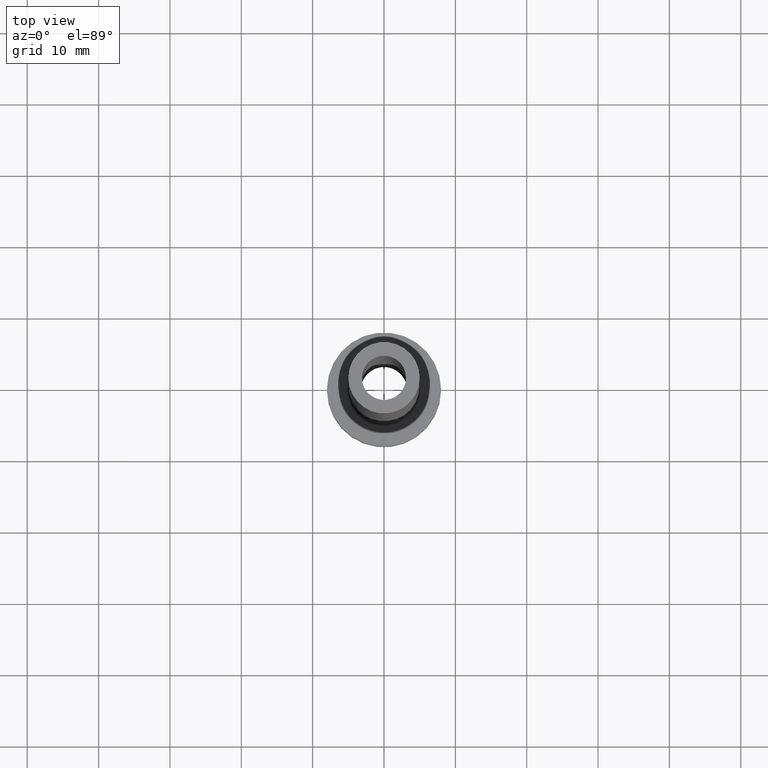
[diagram: clean part render]
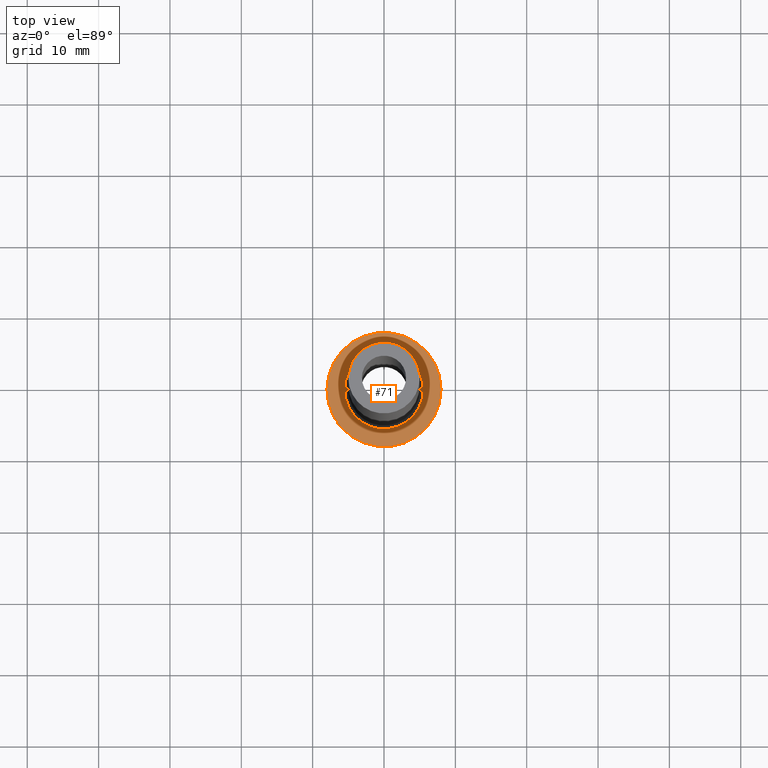
[diagram: same view with one face highlighted and labeled with its STEP entity id]
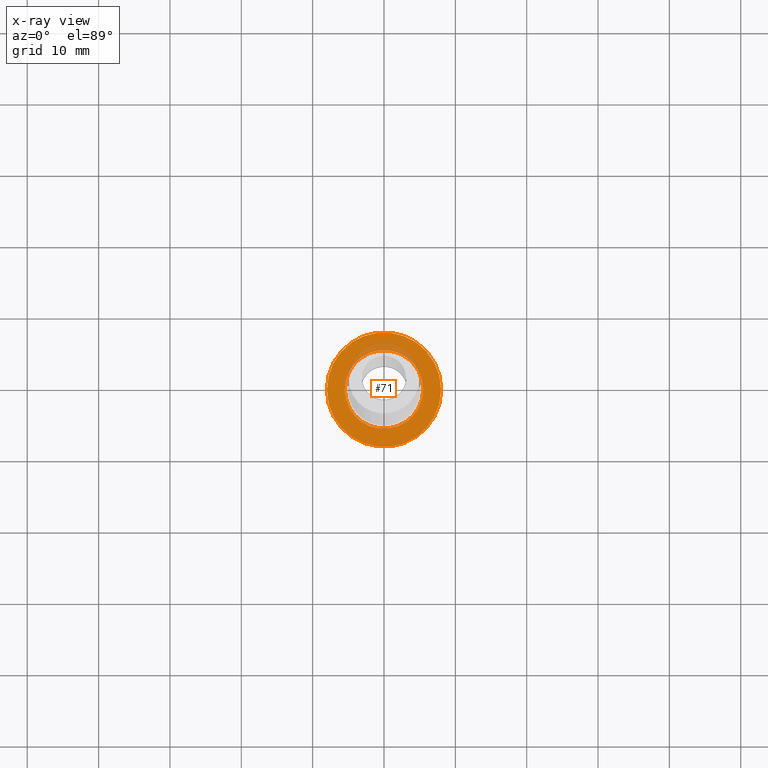
[diagram: x-ray of the same camera — body ghosted, the highlighted face saturated]
A machine part, top view. The second image highlights one B-rep face of the part: STEP entity #71.
The next image is the same camera in x-ray: the body ghosted, the highlighted face saturated — about 9% of this face is hidden behind the body in this view.
In plain terms, the highlighted planar face has unit normal (0, 0, 1).
Its self-contained STEP definition (entity closure, byte-faithful):
#2 = EDGE_CURVE ( 'NONE', #245, #405, #45, .T. ) ;
#5 = AXIS2_PLACEMENT_3D ( 'NONE', #148, #439, #8 ) ;
#8 = DIRECTION ( 'NONE',  ( 1.000000000000000000, 0.000000000000000000, 0.000000000000000000 ) ) ;
#15 = ORIENTED_EDGE ( 'NONE', *, *, #244, .T. ) ;
#45 = CIRCLE ( 'NONE', #310, 8.000000000000000000 ) ;
#59 = FACE_OUTER_BOUND ( 'NONE', #349, .T. ) ;
#60 = ORIENTED_EDGE ( 'NONE', *, *, #376, .T. ) ;
#63 = CARTESIAN_POINT ( 'NONE',  ( 0.000000000000000000, 0.000000000000000000, 5.000000000000000000 ) ) ;
#71 = ADVANCED_FACE ( 'NONE', ( #203, #59 ), #451, .T. ) ;
#90 = CARTESIAN_POINT ( 'NONE',  ( 0.000000000000000000, 0.000000000000000000, 5.000000000000000000 ) ) ;
#95 = CIRCLE ( 'NONE', #162, 8.000000000000000000 ) ;
#97 = ORIENTED_EDGE ( 'NONE', *, *, #2, .T. ) ;
#100 = EDGE_CURVE ( 'NONE', #193, #316, #189, .T. ) ;
#104 = CARTESIAN_POINT ( 'NONE',  ( 0.000000000000000000, 0.000000000000000000, 5.000000000000000000 ) ) ;
#112 = CARTESIAN_POINT ( 'NONE',  ( -5.500000000000000000, 6.735557395310442023E-16, 5.000000000000002665 ) ) ;
#122 = DIRECTION ( 'NONE',  ( 1.000000000000000000, 0.000000000000000000, -0.000000000000000000 ) ) ;
#148 = CARTESIAN_POINT ( 'NONE',  ( 0.000000000000000000, 0.000000000000000000, 5.000000000000000000 ) ) ;
#157 = DIRECTION ( 'NONE',  ( -0.000000000000000000, -0.000000000000000000, -1.000000000000000000 ) ) ;
#162 = AXIS2_PLACEMENT_3D ( 'NONE', #104, #211, #440 ) ;
#166 = EDGE_LOOP ( 'NONE', ( #60, #195 ) ) ;
#187 = DIRECTION ( 'NONE',  ( 0.000000000000000000, 0.000000000000000000, 1.000000000000000000 ) ) ;
#189 = CIRCLE ( 'NONE', #351, 5.500000000000000000 ) ;
#193 = VERTEX_POINT ( 'NONE', #112 ) ;
#195 = ORIENTED_EDGE ( 'NONE', *, *, #100, .T. ) ;
#202 = CIRCLE ( 'NONE', #5, 5.500000000000000000 ) ;
#203 = FACE_BOUND ( 'NONE', #166, .T. ) ;
#211 = DIRECTION ( 'NONE',  ( 0.000000000000000000, 0.000000000000000000, 1.000000000000000000 ) ) ;
#244 = EDGE_CURVE ( 'NONE', #405, #245, #95, .T. ) ;
#245 = VERTEX_POINT ( 'NONE', #252 ) ;
#252 = CARTESIAN_POINT ( 'NONE',  ( 8.000000000000000000, 9.797174393178825657E-16, 5.000000000000000000 ) ) ;
#256 = AXIS2_PLACEMENT_3D ( 'NONE', #422, #380, #122 ) ;
#310 = AXIS2_PLACEMENT_3D ( 'NONE', #63, #187, #460 ) ;
#316 = VERTEX_POINT ( 'NONE', #378 ) ;
#349 = EDGE_LOOP ( 'NONE', ( #15, #97 ) ) ;
#351 = AXIS2_PLACEMENT_3D ( 'NONE', #90, #157, #372 ) ;
#372 = DIRECTION ( 'NONE',  ( 1.000000000000000000, 0.000000000000000000, 0.000000000000000000 ) ) ;
#376 = EDGE_CURVE ( 'NONE', #316, #193, #202, .T. ) ;
#378 = CARTESIAN_POINT ( 'NONE',  ( 5.500000000000000000, 0.000000000000000000, 5.000000000000002665 ) ) ;
#380 = DIRECTION ( 'NONE',  ( 0.000000000000000000, 0.000000000000000000, 1.000000000000000000 ) ) ;
#398 = CARTESIAN_POINT ( 'NONE',  ( -8.000000000000000000, 0.000000000000000000, 5.000000000000000000 ) ) ;
#405 = VERTEX_POINT ( 'NONE', #398 ) ;
#422 = CARTESIAN_POINT ( 'NONE',  ( 0.000000000000000000, 0.000000000000000000, 5.000000000000000000 ) ) ;
#439 = DIRECTION ( 'NONE',  ( -0.000000000000000000, -0.000000000000000000, -1.000000000000000000 ) ) ;
#440 = DIRECTION ( 'NONE',  ( 1.000000000000000000, 0.000000000000000000, 0.000000000000000000 ) ) ;
#451 = PLANE ( 'NONE',  #256 ) ;
#460 = DIRECTION ( 'NONE',  ( 1.000000000000000000, 0.000000000000000000, 0.000000000000000000 ) ) ;